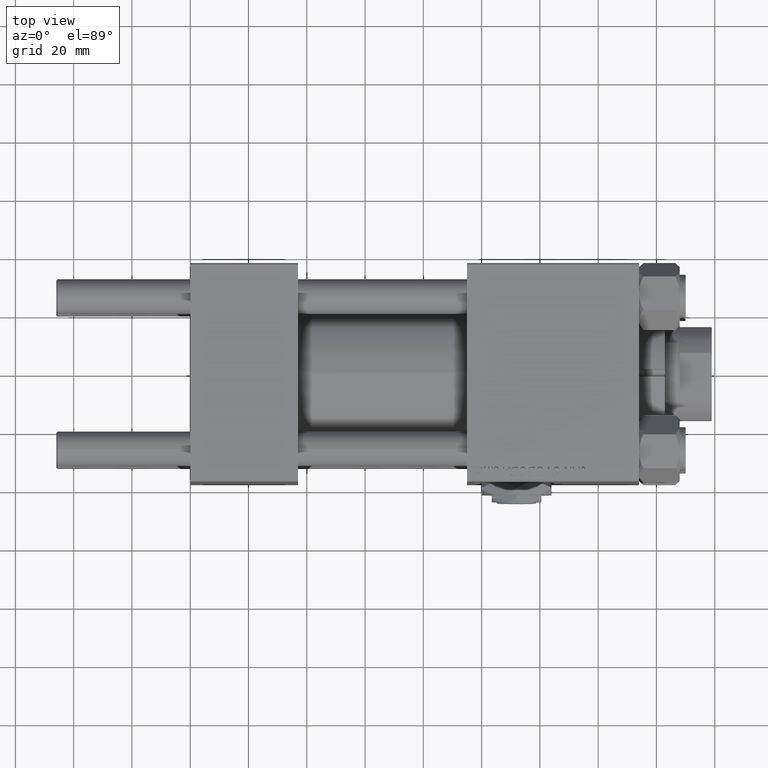
[diagram: clean part render]
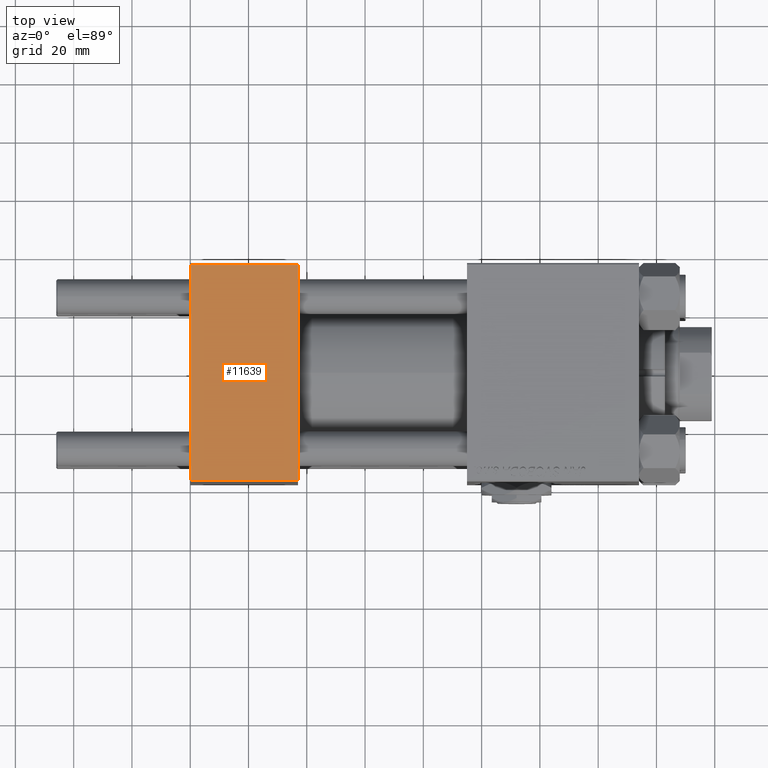
[diagram: same view with one face highlighted and labeled with its STEP entity id]
A machine part, top view. The second image highlights one B-rep face of the part: STEP entity #11639.
In plain terms, the highlighted planar face has unit normal (0, 0, -1).
Its self-contained STEP definition (entity closure, byte-faithful):
#2885 = LINE ( 'NONE', #29854, #32168 ) ;
#6079 = DIRECTION ( 'NONE',  ( 0.000000000000000000, -1.000000000000000000, -9.251858538542971581E-17 ) ) ;
#6362 = ORIENTED_EDGE ( 'NONE', *, *, #36533, .T. ) ;
#6810 = ORIENTED_EDGE ( 'NONE', *, *, #29559, .F. ) ;
#7667 = EDGE_LOOP ( 'NONE', ( #42745, #6362, #6810, #16242 ) ) ;
#7936 = DIRECTION ( 'NONE',  ( 1.000000000000000000, 0.000000000000000000, 0.000000000000000000 ) ) ;
#7975 = VECTOR ( 'NONE', #7936, 1000.000000000000000 ) ;
#10790 = EDGE_CURVE ( 'NONE', #46487, #50177, #2885, .T. ) ;
#11004 = VERTEX_POINT ( 'NONE', #33993 ) ;
#11639 = ADVANCED_FACE ( 'NONE', ( #12956 ), #44633, .F. ) ;
#12956 = FACE_OUTER_BOUND ( 'NONE', #7667, .T. ) ;
#16207 = VECTOR ( 'NONE', #33759, 1000.000000000000000 ) ;
#16242 = ORIENTED_EDGE ( 'NONE', *, *, #10790, .T. ) ;
#17641 = VERTEX_POINT ( 'NONE', #36173 ) ;
#18850 = DIRECTION ( 'NONE',  ( -1.000000000000000000, 0.000000000000000000, 0.000000000000000000 ) ) ;
#20265 = DIRECTION ( 'NONE',  ( 0.000000000000000000, 1.000000000000000000, 9.251858538542971581E-17 ) ) ;
#20752 = CARTESIAN_POINT ( 'NONE',  ( 37.00000000000000000, -37.00000000000000711, 37.49999999999999289 ) ) ;
#21468 = CARTESIAN_POINT ( 'NONE',  ( 37.00000000000000000, 37.49999999999999289, 37.50000000000000000 ) ) ;
#22499 = LINE ( 'NONE', #21468, #16207 ) ;
#24463 = CARTESIAN_POINT ( 'NONE',  ( 37.00000000000000000, 37.49999999999999289, 37.50000000000000000 ) ) ;
#29559 = EDGE_CURVE ( 'NONE', #46487, #17641, #22499, .T. ) ;
#29854 = CARTESIAN_POINT ( 'NONE',  ( 0.000000000000000000, 36.99999999999999289, 37.50000000000000000 ) ) ;
#31519 = VECTOR ( 'NONE', #6079, 1000.000000000000000 ) ;
#32168 = VECTOR ( 'NONE', #18850, 1000.000000000000000 ) ;
#33759 = DIRECTION ( 'NONE',  ( 0.000000000000000000, -1.000000000000000000, -9.251858538542971581E-17 ) ) ;
#33993 = CARTESIAN_POINT ( 'NONE',  ( 0.000000000000000000, -37.00000000000000711, 37.49999999999999289 ) ) ;
#35973 = CARTESIAN_POINT ( 'NONE',  ( 0.000000000000000000, 36.99999999999999289, 37.50000000000000000 ) ) ;
#36173 = CARTESIAN_POINT ( 'NONE',  ( 37.00000000000000000, -37.00000000000000711, 37.49999999999999289 ) ) ;
#36533 = EDGE_CURVE ( 'NONE', #11004, #17641, #44327, .T. ) ;
#37217 = AXIS2_PLACEMENT_3D ( 'NONE', #24463, #40436, #20265 ) ;
#40436 = DIRECTION ( 'NONE',  ( 0.000000000000000000, 9.251858538542971581E-17, -1.000000000000000000 ) ) ;
#40638 = EDGE_CURVE ( 'NONE', #50177, #11004, #46407, .T. ) ;
#42471 = CARTESIAN_POINT ( 'NONE',  ( 37.00000000000000000, 36.99999999999999289, 37.50000000000000000 ) ) ;
#42745 = ORIENTED_EDGE ( 'NONE', *, *, #40638, .T. ) ;
#44327 = LINE ( 'NONE', #20752, #7975 ) ;
#44633 = PLANE ( 'NONE',  #37217 ) ;
#46407 = LINE ( 'NONE', #49824, #31519 ) ;
#46487 = VERTEX_POINT ( 'NONE', #42471 ) ;
#49824 = CARTESIAN_POINT ( 'NONE',  ( 0.000000000000000000, 37.49999999999999289, 37.50000000000000000 ) ) ;
#50177 = VERTEX_POINT ( 'NONE', #35973 ) ;